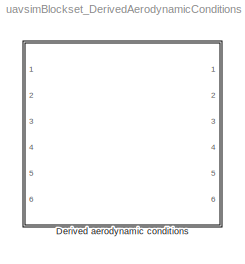
MODEL uavsimBlockset_DerivedAerodynamicConditions
KIND library
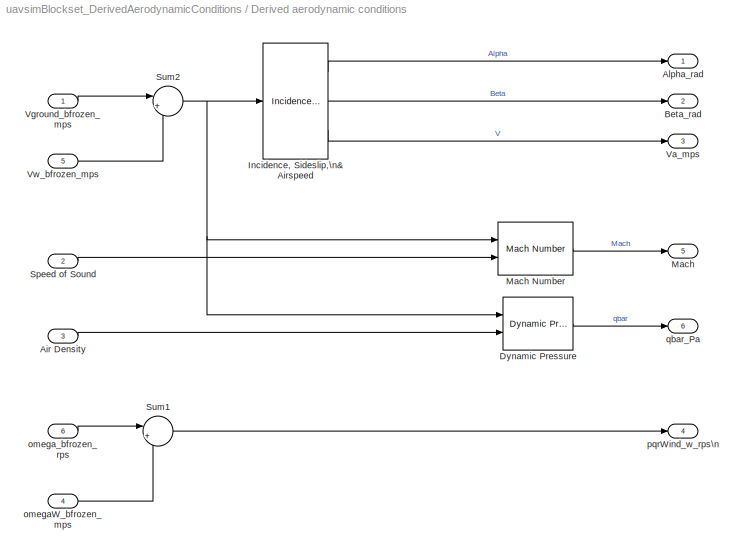
BLOCK [SubSystem] Derived aerodynamic conditions
  FunctionWithSeparateData = off
  MaskHideContents = off
  MinAlgLoopOccurrences = off
  Opaque = off
  Ports = [6, 6]
  PropExecContextOutsideSubsystem = off
  RTWSystemCode = Auto
  RequestExecContextInheritance = off
  SID = 4061
BLOCK [Inport] Derived aerodynamic conditions/Air Density
  IconDisplay = Port number
  Port = 3
  SID = 4064
BLOCK [Outport] Derived aerodynamic conditions/Alpha_rad
  IconDisplay = Port number
  SID = 4071
BLOCK [Outport] Derived aerodynamic conditions/Beta_rad
  IconDisplay = Port number
  Port = 2
  SID = 4072
BLOCK [Reference] Derived aerodynamic conditions/Dynamic Pressure  REF=aerolibasang/Dynamic Pressure
  Ports = [2, 1]
  SID = 4067
  SourceBlock = aerolibasang/Dynamic Pressure
  SourceType = Dynamic Pressure
BLOCK [Reference] Derived aerodynamic conditions/Incidence, Sideslip,\n& Airspeed  REF=aerolibasang/Incidence, Sideslip,\n& Airspeed
  Ports = [1, 3]
  SID = 4068
  SourceBlock = aerolibasang/Incidence, Sideslip,\n& Airspeed
  SourceType = Incidence,Sideslip,&Airspeed
BLOCK [Outport] Derived aerodynamic conditions/Mach
  IconDisplay = Port number
  Port = 5
  SID = 4075
BLOCK [Reference] Derived aerodynamic conditions/Mach Number  REF=aerolibasang/Mach Number
  Ports = [2, 1]
  SID = 4069
  SourceBlock = aerolibasang/Mach Number
  SourceType = Mach Number
BLOCK [Inport] Derived aerodynamic conditions/Speed of Sound
  IconDisplay = Port number
  Port = 2
  SID = 4063
BLOCK [Sum] Derived aerodynamic conditions/Sum1
  IconShape = round
  Inputs = |+-
  Ports = [2, 1]
  SID = 4427
BLOCK [Sum] Derived aerodynamic conditions/Sum2
  IconShape = round
  Inputs = |+-
  Ports = [2, 1]
  SID = 4070
BLOCK [Outport] Derived aerodynamic conditions/Va_mps
  IconDisplay = Port number
  Port = 3
  SID = 4073
BLOCK [Inport] Derived aerodynamic conditions/Vground_bfrozen_mps
  IconDisplay = Port number
  PortDimensions = 3
  SID = 4062
BLOCK [Inport] Derived aerodynamic conditions/Vw_bfrozen_mps
  IconDisplay = Port number
  Port = 5
  PortDimensions = 3
  SID = 4066
BLOCK [Inport] Derived aerodynamic conditions/omegaW_bfrozen_mps
  IconDisplay = Port number
  Port = 4
  PortDimensions = 3
  SID = 4065
BLOCK [Inport] Derived aerodynamic conditions/omega_bfrozen_rps
  IconDisplay = Port number
  Port = 6
  PortDimensions = 3
  SID = 4185
BLOCK [Outport] Derived aerodynamic conditions/pqrWind_w_rps\n
  IconDisplay = Port number
  Port = 4
  SID = 4074
BLOCK [Outport] Derived aerodynamic conditions/qbar_Pa
  IconDisplay = Port number
  InitialOutput = 0
  Port = 6
  SID = 4076
LINE Derived aerodynamic conditions/Air Density:1 -> Derived aerodynamic conditions/Dynamic Pressure:2
LINE Derived aerodynamic conditions/Dynamic Pressure:1 -> Derived aerodynamic conditions/qbar_Pa:1
LINE Derived aerodynamic conditions/Incidence, Sideslip,\n& Airspeed:1 -> Derived aerodynamic conditions/Alpha_rad:1
LINE Derived aerodynamic conditions/Incidence, Sideslip,\n& Airspeed:2 -> Derived aerodynamic conditions/Beta_rad:1
LINE Derived aerodynamic conditions/Incidence, Sideslip,\n& Airspeed:3 -> Derived aerodynamic conditions/Va_mps:1
LINE Derived aerodynamic conditions/Mach Number:1 -> Derived aerodynamic conditions/Mach:1
LINE Derived aerodynamic conditions/Speed of Sound:1 -> Derived aerodynamic conditions/Mach Number:2
LINE Derived aerodynamic conditions/Sum1:1 -> Derived aerodynamic conditions/pqrWind_w_rps\n:1
NET Derived aerodynamic conditions/Sum2:1 -> Derived aerodynamic conditions/Dynamic Pressure:1, Derived aerodynamic conditions/Incidence, Sideslip,\n& Airspeed:1, Derived aerodynamic conditions/Mach Number:1
LINE Derived aerodynamic conditions/Vground_bfrozen_mps:1 -> Derived aerodynamic conditions/Sum2:1
LINE Derived aerodynamic conditions/Vw_bfrozen_mps:1 -> Derived aerodynamic conditions/Sum2:2
LINE Derived aerodynamic conditions/omegaW_bfrozen_mps:1 -> Derived aerodynamic conditions/Sum1:2
LINE Derived aerodynamic conditions/omega_bfrozen_rps:1 -> Derived aerodynamic conditions/Sum1:1
note: NET lines group one-source signal fan-out (src -> all destinations, sorted); 1:1 wires keep LINE
